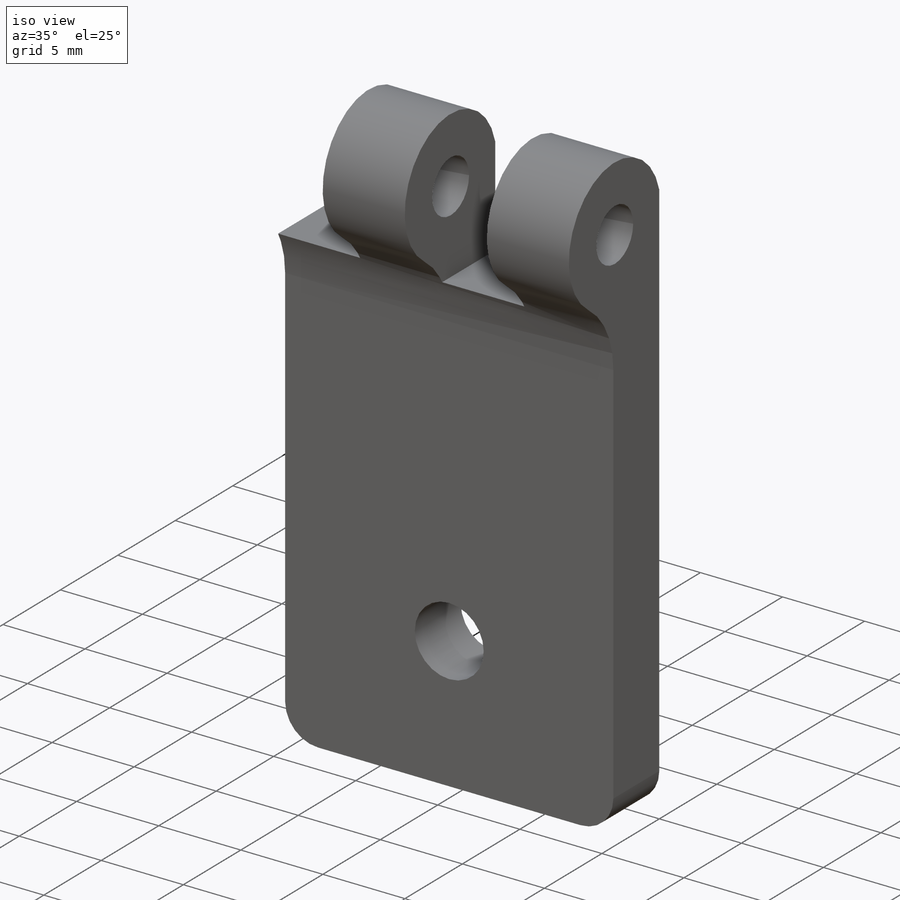
[diagram: iso view]
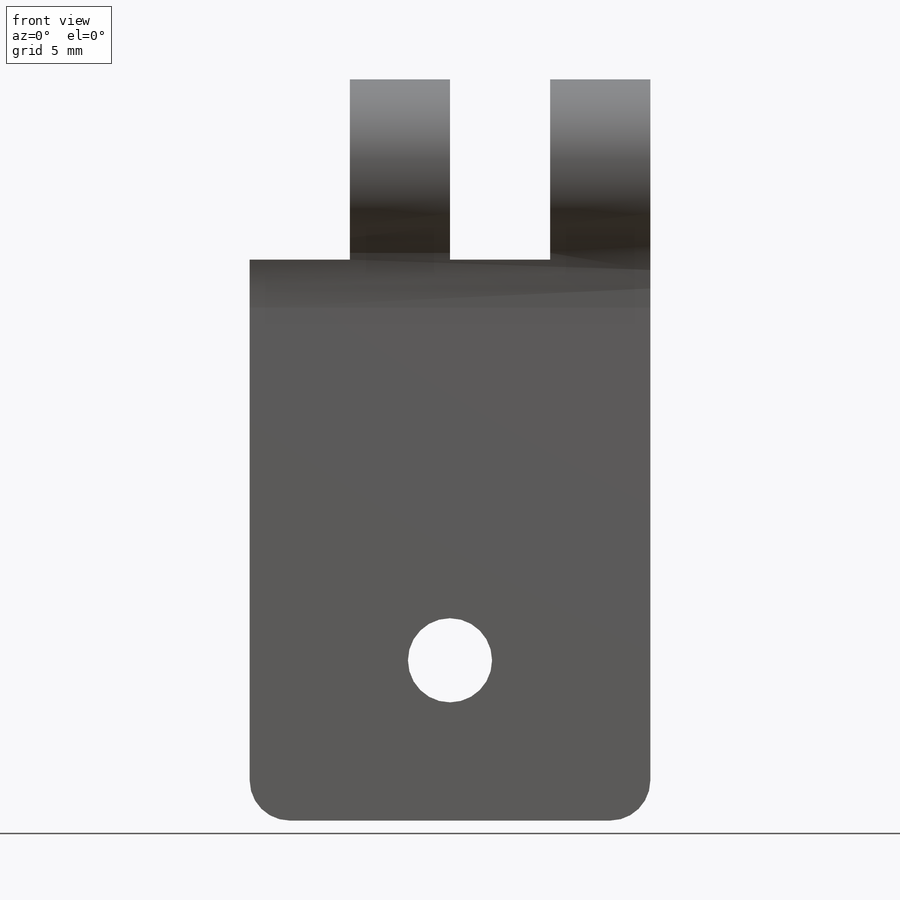
[diagram: front view]
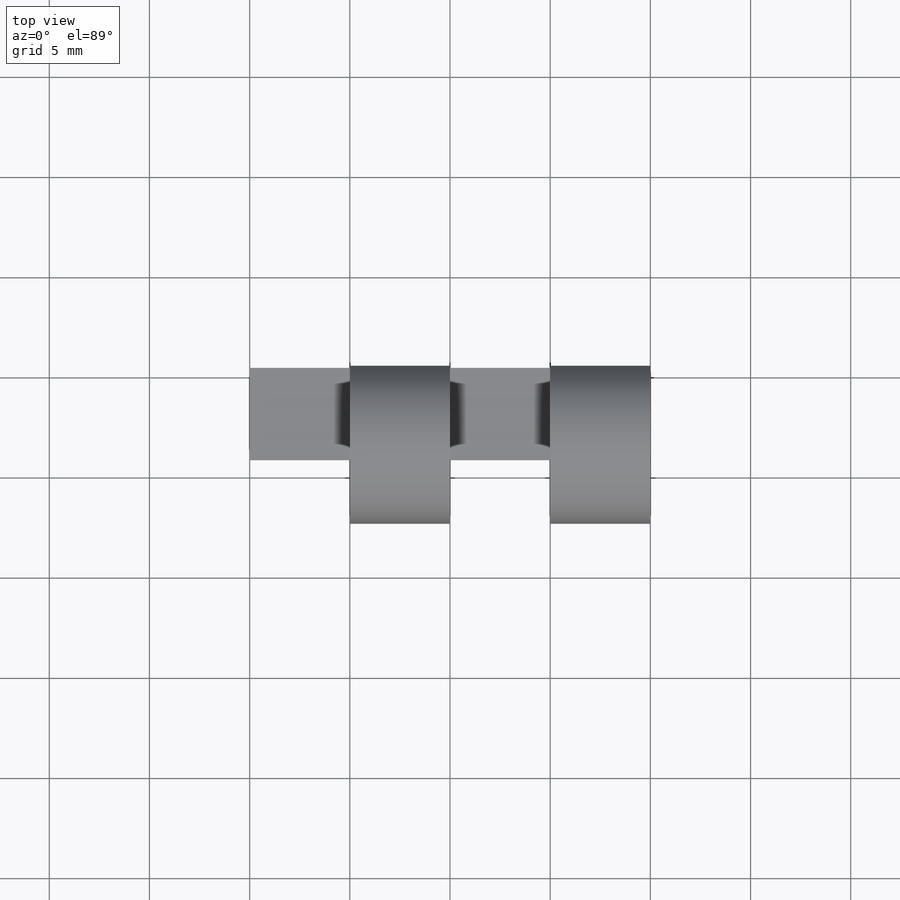
[diagram: top view]
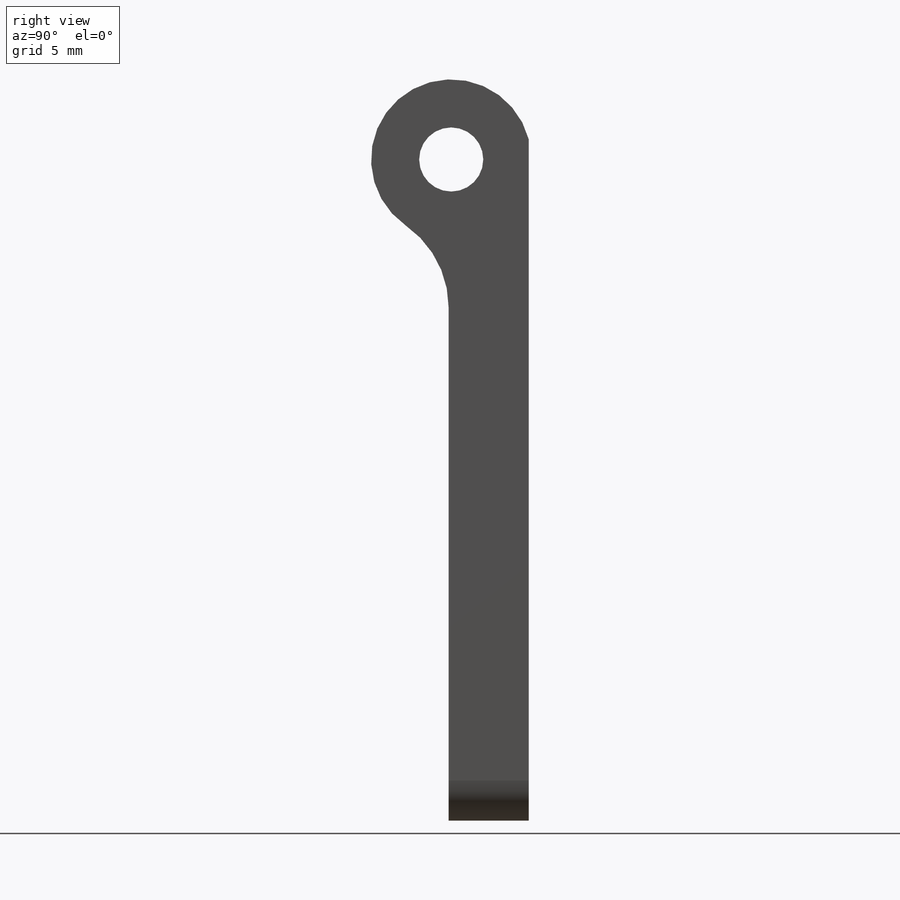
[diagram: right view]
SOLIDWORKS PART (.sldprt)
format: sldprt  version: not decoded by parser v0  size: 169,984 bytes
history: native  units: mm
features: sketch x5, cut_extrude x3, extrude x2, fillet x2, material x1 (+11 scaffold rows collapsed)
feature tree (24):
  scaffold x11  (default folders/planes/origin — collapsed)
  material  "Material <not specified>"
  sketch  "Sketch1"  dims[D1=20.0mm D2=34.0mm]
  extrude  "Boss-Extrude1"  Depth=4mm
  sketch  "Sketch2"  dims[D2=4.0mm D1=5.0mm]
  extrude  "Boss-Extrude2"  [1 undecoded]
  fillet  "Fillet1"  Radius=5mm
  sketch  "Sketch3"  dims[D1=3.2mm]
  cut_extrude  "Cut-Extrude1"  [1 undecoded]
  sketch  "Sketch4"  dims[D1=4.2mm D2=10.0mm D3=8.0mm]
  cut_extrude  "Cut-Extrude2"  [1 undecoded]
  fillet  "Fillet2"  Radius=2mm
  sketch  "Sketch5"  dims[c1.D1=5.0mm c1.D2=5.0mm c1.D3=5.0mm c1.D4=28.0mm c1.D5=28.0mm c1.D6=12.0mm c1.D7=12.0mm c2.D3=5.0mm]
  cut_extrude  "Cut-Extrude3"  [1 undecoded]
decode coverage: 8 of 12 modeling features carry decoded parameters
note: 4 parameter values undecoded
summary: no parameter record found for 4 features
note: suppression state not decoded; provenance and decode notes live in map.json
